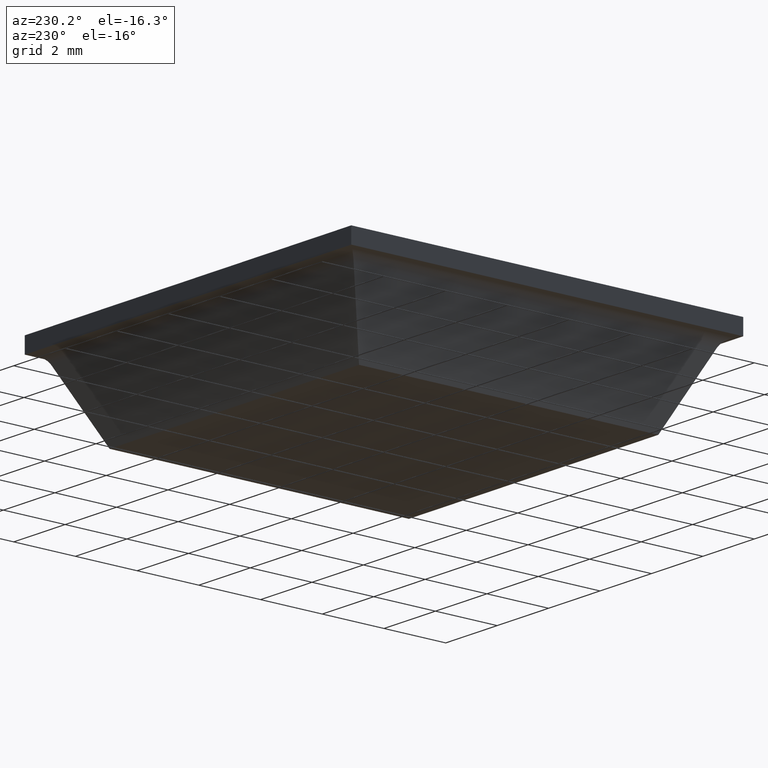
[diagram: clean part render]
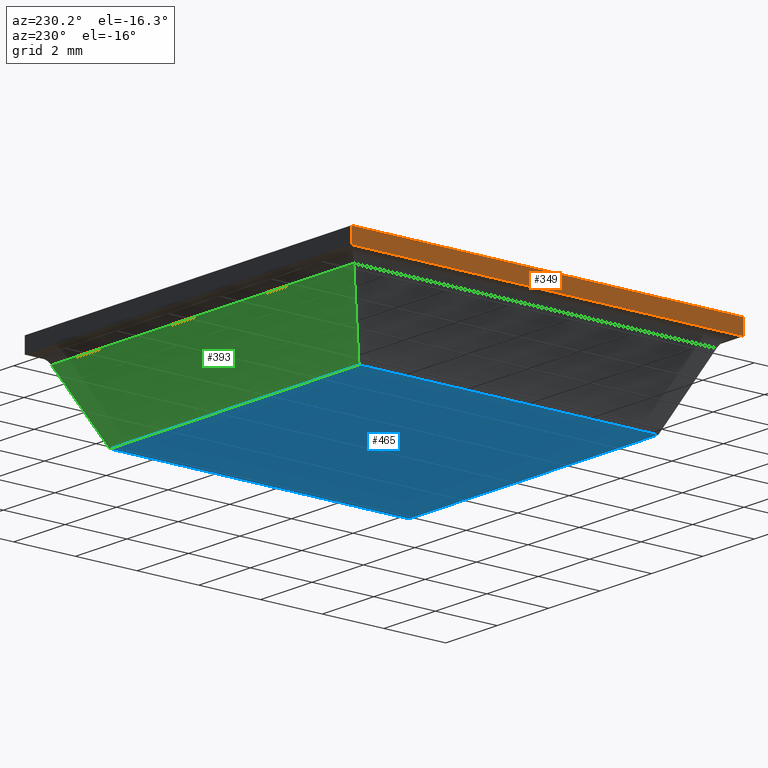
[diagram: same view with three faces highlighted in distinct colors, each labeled with its STEP entity id]
A machine part, auxiliary view with three faces highlighted in distinct colors.
Their STEP definitions:

[orange] entity #349 — the highlighted face is a freeform B-spline surface patch.
#266=CARTESIAN_POINT('',(-6.350000000000000,-6.350000000000000,2.500000000000000));
#267=VERTEX_POINT('',#266);
#273=CARTESIAN_POINT('',(-6.350000000000000,6.350000000000000,2.500000000000000));
#274=VERTEX_POINT('',#273);
#275=CARTESIAN_POINT('',(-6.350000000000000,-6.350000000000000,2.500000000000000));
#276=CARTESIAN_POINT('',(-6.350000000000000,6.350000000000000,2.500000000000000));
#277=QUASI_UNIFORM_CURVE('',1,(#275,#276),.UNSPECIFIED.,.F.,.U.);
#278=EDGE_CURVE('',#267,#274,#277,.T.);
#299=CARTESIAN_POINT('',(-6.350000000000000,-6.350000000000000,3.0));
#300=VERTEX_POINT('',#299);
#315=CARTESIAN_POINT('',(-6.350000000000000,6.350000000000000,3.0));
#316=VERTEX_POINT('',#315);
#322=CARTESIAN_POINT('',(-6.350000000000000,6.350000000000000,3.0));
#323=CARTESIAN_POINT('',(-6.350000000000000,-6.350000000000000,3.0));
#324=QUASI_UNIFORM_CURVE('',1,(#322,#323),.UNSPECIFIED.,.F.,.U.);
#325=EDGE_CURVE('',#316,#300,#324,.T.);
#330=CARTESIAN_POINT('',(-6.350000000000000,-6.984364856166422,3.024974999030904));
#331=CARTESIAN_POINT('',(-6.350000000000000,-6.984364856166422,2.475024987558052));
#332=CARTESIAN_POINT('',(-6.350000000000000,6.984365310353814,3.024974999030904));
#333=CARTESIAN_POINT('',(-6.350000000000000,6.984365310353814,2.475024987558052));
#334=B_SPLINE_SURFACE_WITH_KNOTS('',1,1,((#330,#332),(#331,#333)),.UNSPECIFIED.,.F.,.F.,.U.,(2,2),(2,2),(0.041708334948495,0.958291687403247),(0.0,13.968730166520240),.UNSPECIFIED.);
#335=ORIENTED_EDGE('',*,*,#278,.F.);
#336=CARTESIAN_POINT('',(-6.350000000000000,-6.350000000000000,3.0));
#337=CARTESIAN_POINT('',(-6.350000000000000,-6.350000000000000,2.500000000000000));
#338=QUASI_UNIFORM_CURVE('',1,(#336,#337),.UNSPECIFIED.,.F.,.U.);
#339=EDGE_CURVE('',#300,#267,#338,.T.);
#340=ORIENTED_EDGE('',*,*,#339,.F.);
#341=ORIENTED_EDGE('',*,*,#325,.F.);
#342=CARTESIAN_POINT('',(-6.350000000000000,6.350000000000000,3.0));
#343=CARTESIAN_POINT('',(-6.350000000000000,6.350000000000000,2.500000000000000));
#344=QUASI_UNIFORM_CURVE('',1,(#342,#343),.UNSPECIFIED.,.F.,.U.);
#345=EDGE_CURVE('',#316,#274,#344,.T.);
#346=ORIENTED_EDGE('',*,*,#345,.T.);
#347=EDGE_LOOP('',(#335,#340,#341,#346));
#348=FACE_OUTER_BOUND('',#347,.T.);
#349=ADVANCED_FACE('',(#348),#334,.F.);

[blue] entity #465 — the highlighted face is a freeform B-spline surface patch.
#229=CARTESIAN_POINT('',(4.850000000000001,-4.850000000000001,0.0));
#230=VERTEX_POINT('',#229);
#237=CARTESIAN_POINT('',(-4.850000000000001,-4.850000000000001,0.0));
#238=VERTEX_POINT('',#237);
#244=CARTESIAN_POINT('',(4.850000000000001,-4.850000000000001,0.0));
#245=CARTESIAN_POINT('',(-4.850000000000001,-4.850000000000001,0.0));
#246=QUASI_UNIFORM_CURVE('',1,(#244,#245),.UNSPECIFIED.,.F.,.U.);
#247=EDGE_CURVE('',#230,#238,#246,.T.);
#371=CARTESIAN_POINT('',(-4.850000000000001,4.850000000000001,0.0));
#372=VERTEX_POINT('',#371);
#379=CARTESIAN_POINT('',(4.850000000000001,4.850000000000001,0.0));
#380=VERTEX_POINT('',#379);
#386=CARTESIAN_POINT('',(-4.850000000000001,4.850000000000001,0.0));
#387=CARTESIAN_POINT('',(4.850000000000001,4.850000000000001,0.0));
#388=QUASI_UNIFORM_CURVE('',1,(#386,#387),.UNSPECIFIED.,.F.,.U.);
#389=EDGE_CURVE('',#372,#380,#388,.T.);
#418=CARTESIAN_POINT('',(4.850000000000001,4.850000000000001,0.0));
#419=CARTESIAN_POINT('',(4.850000000000001,-4.850000000000001,0.0));
#420=QUASI_UNIFORM_CURVE('',1,(#418,#419),.UNSPECIFIED.,.F.,.U.);
#421=EDGE_CURVE('',#380,#230,#420,.T.);
#434=CARTESIAN_POINT('',(-4.850000000000001,-4.850000000000001,0.0));
#435=CARTESIAN_POINT('',(-4.850000000000001,4.850000000000001,0.0));
#436=QUASI_UNIFORM_CURVE('',1,(#434,#435),.UNSPECIFIED.,.F.,.U.);
#437=EDGE_CURVE('',#238,#372,#436,.T.);
#454=CARTESIAN_POINT('',(-5.334514890142859,-5.334514890142859,0.0));
#455=CARTESIAN_POINT('',(5.334515237041892,-5.334514890142859,0.0));
#456=CARTESIAN_POINT('',(-5.334514890142858,5.334515237041892,0.0));
#457=CARTESIAN_POINT('',(5.334515237041892,5.334515237041892,0.0));
#458=B_SPLINE_SURFACE_WITH_KNOTS('',1,1,((#454,#456),(#455,#457)),.UNSPECIFIED.,.F.,.F.,.U.,(2,2),(2,2),(0.0,10.669030127184749),(0.0,10.669030127184749),.UNSPECIFIED.);
#459=ORIENTED_EDGE('',*,*,#247,.T.);
#460=ORIENTED_EDGE('',*,*,#437,.T.);
#461=ORIENTED_EDGE('',*,*,#389,.T.);
#462=ORIENTED_EDGE('',*,*,#421,.T.);
#463=EDGE_LOOP('',(#459,#460,#461,#462));
#464=FACE_OUTER_BOUND('',#463,.T.);
#465=ADVANCED_FACE('',(#464),#458,.F.);

[green] entity #393 — the highlighted face is a freeform B-spline surface patch.
#82=CARTESIAN_POINT('',(-5.881150035810800,5.881150035810720,2.211309076796510));
#83=VERTEX_POINT('',#82);
#121=CARTESIAN_POINT('',(5.881150035810720,5.881150035810800,2.211309076796510));
#122=VERTEX_POINT('',#121);
#136=CARTESIAN_POINT('',(-5.881150035810800,5.881150035810720,2.211309076796510));
#137=CARTESIAN_POINT('',(5.881150035810720,5.881150035810800,2.211309076796510));
#138=QUASI_UNIFORM_CURVE('',1,(#136,#137),.UNSPECIFIED.,.F.,.U.);
#139=EDGE_CURVE('',#83,#122,#138,.T.);
#366=CARTESIAN_POINT('',(-6.468677122422789,4.798494034666431,-0.110454933516765));
#367=CARTESIAN_POINT('',(-6.468677122422789,5.932656084117161,2.321764188249071));
#368=CARTESIAN_POINT('',(6.468677227585866,4.798494034666431,-0.110454933516765));
#369=CARTESIAN_POINT('',(6.468677227585866,5.932656084117161,2.321764188249071));
#370=B_SPLINE_SURFACE_WITH_KNOTS('',1,1,((#366,#368),(#367,#369)),.UNSPECIFIED.,.F.,.F.,.U.,(2,2),(2,2),(0.0,2.683656723706974),(0.0,12.937354350008651),.UNSPECIFIED.);
#371=CARTESIAN_POINT('',(-4.850000000000001,4.850000000000001,0.0));
#372=VERTEX_POINT('',#371);
#373=CARTESIAN_POINT('',(-5.881150035810800,5.881150035810720,2.211309076796510));
#374=CARTESIAN_POINT('',(-4.850000000000001,4.850000000000001,0.0));
#375=QUASI_UNIFORM_CURVE('',1,(#373,#374),.UNSPECIFIED.,.F.,.U.);
#376=EDGE_CURVE('',#83,#372,#375,.T.);
#377=ORIENTED_EDGE('',*,*,#376,.F.);
#378=ORIENTED_EDGE('',*,*,#139,.T.);
#379=CARTESIAN_POINT('',(4.850000000000001,4.850000000000001,0.0));
#380=VERTEX_POINT('',#379);
#381=CARTESIAN_POINT('',(5.881150035810720,5.881150035810800,2.211309076796510));
#382=CARTESIAN_POINT('',(4.850000000000001,4.850000000000001,0.0));
#383=QUASI_UNIFORM_CURVE('',1,(#381,#382),.UNSPECIFIED.,.F.,.U.);
#384=EDGE_CURVE('',#122,#380,#383,.T.);
#385=ORIENTED_EDGE('',*,*,#384,.T.);
#386=CARTESIAN_POINT('',(-4.850000000000001,4.850000000000001,0.0));
#387=CARTESIAN_POINT('',(4.850000000000001,4.850000000000001,0.0));
#388=QUASI_UNIFORM_CURVE('',1,(#386,#387),.UNSPECIFIED.,.F.,.U.);
#389=EDGE_CURVE('',#372,#380,#388,.T.);
#390=ORIENTED_EDGE('',*,*,#389,.F.);
#391=EDGE_LOOP('',(#377,#378,#385,#390));
#392=FACE_OUTER_BOUND('',#391,.T.);
#393=ADVANCED_FACE('',(#392),#370,.T.);